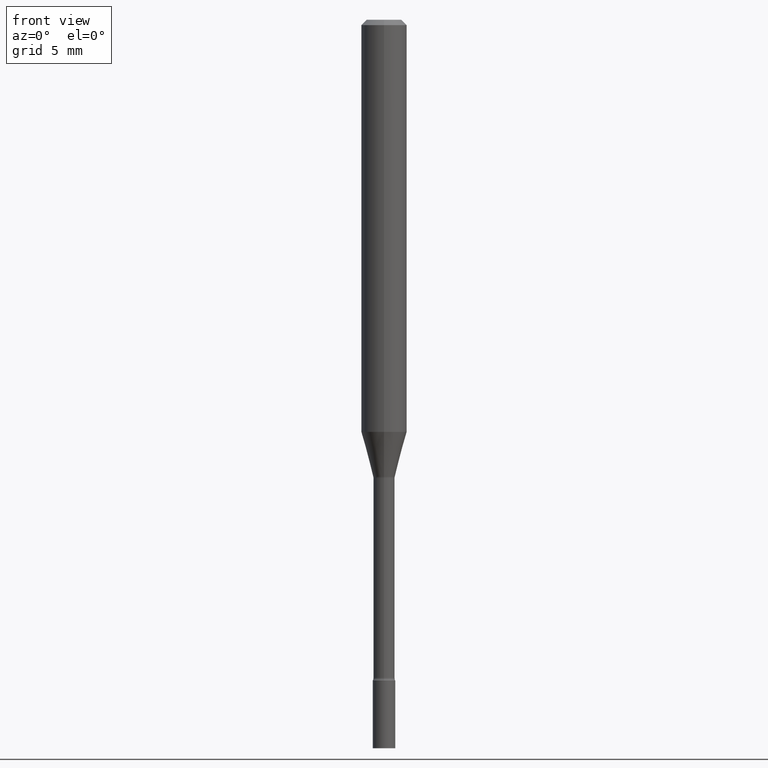
[diagram: clean part render]
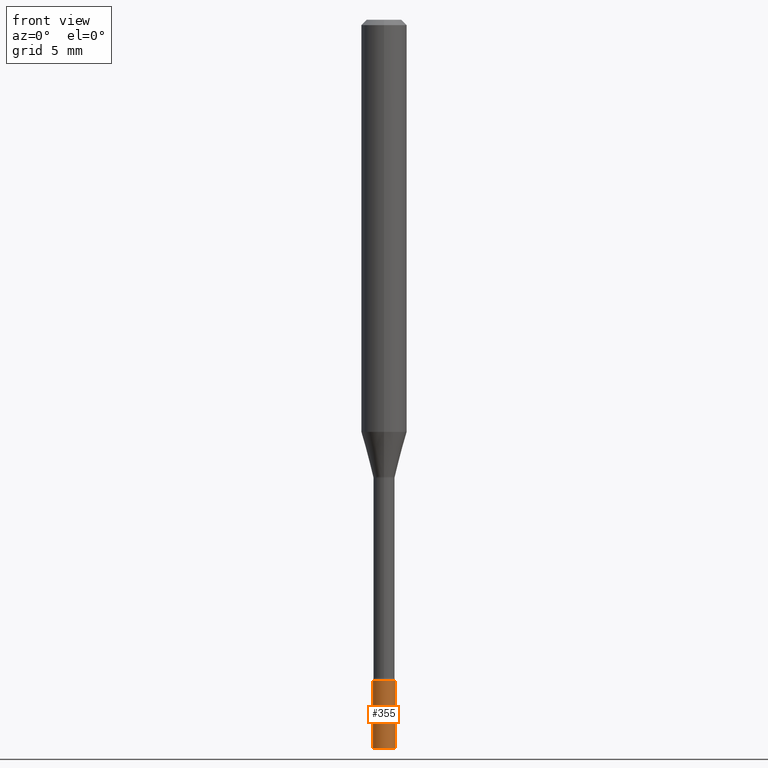
[diagram: same view with one face highlighted and labeled with its STEP entity id]
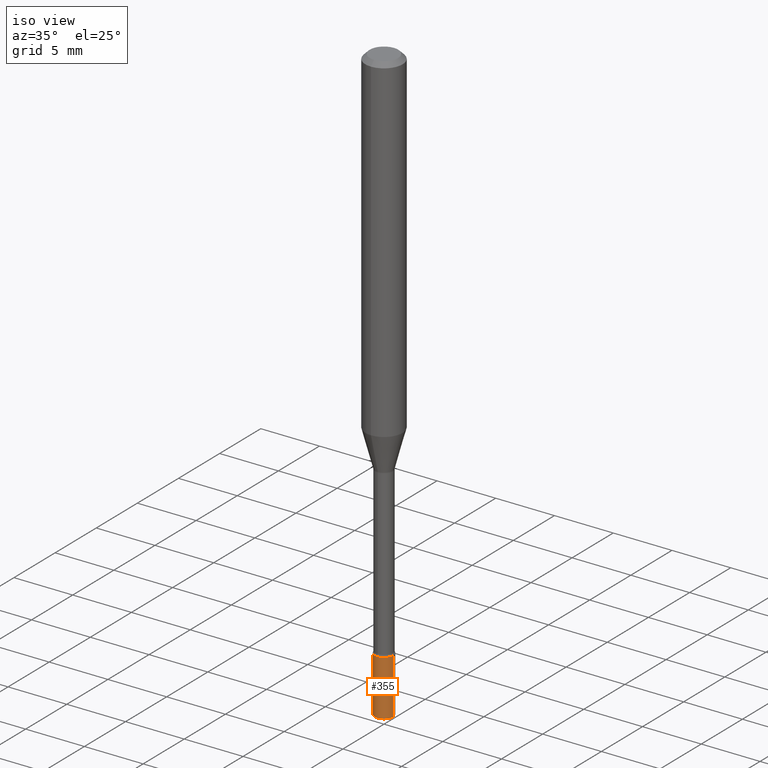
[diagram: same view with one face highlighted and labeled with its STEP entity id]
A machine part, front view. The second image highlights one B-rep face of the part: STEP entity #355.
A second angle (iso view) of the same face is appended — the face is thin or edge-on in the first view.
In plain terms, the highlighted cylindrical surface (edge-blend (fillet) strip) has radius 0.7874 mm, axis along (-0, 0, 1).
Its self-contained STEP definition (entity closure, byte-faithful):
#16 = EDGE_CURVE ( 'NONE', #511, #450, #281, .T. ) ;
#19 = CARTESIAN_POINT ( 'NONE',  ( 4.436080414419837365E-29, -6.333547148661465016E-15, -1.813999999999999835 ) ) ;
#26 = CARTESIAN_POINT ( 'NONE',  ( -0.03099999999999999978, -6.437986665088246838E-15, -2.000000000000000000 ) ) ;
#32 = VERTEX_POINT ( 'NONE', #60 ) ;
#38 = CARTESIAN_POINT ( 'NONE',  ( 0.000000000000000000, 0.000000000000000000, 0.000000000000000000 ) ) ;
#49 = DIRECTION ( 'NONE',  ( -2.445468806185136877E-29, 3.491481338843145188E-15, 1.000000000000000000 ) ) ;
#60 = CARTESIAN_POINT ( 'NONE',  ( -0.03099999999999999978, -6.437986665088246838E-15, -1.813999999999999835 ) ) ;
#66 = AXIS2_PLACEMENT_3D ( 'NONE', #202, #442, #446 ) ;
#78 = ORIENTED_EDGE ( 'NONE', *, *, #454, .T. ) ;
#128 = LINE ( 'NONE', #207, #360 ) ;
#129 = ORIENTED_EDGE ( 'NONE', *, *, #16, .T. ) ;
#166 = CARTESIAN_POINT ( 'NONE',  ( 0.03099999999999999978, -7.199434520694564708E-15, -2.000000000000000000 ) ) ;
#195 = CIRCLE ( 'NONE', #445, 0.03099999999999999978 ) ;
#201 = VERTEX_POINT ( 'NONE', #26 ) ;
#202 = CARTESIAN_POINT ( 'NONE',  ( 4.890937612370273194E-29, -6.982962677686291165E-15, -2.000000000000000000 ) ) ;
#207 = CARTESIAN_POINT ( 'NONE',  ( -0.03099999999999999978, 2.202682480856310560E-16, -1.524869877979020612E-30 ) ) ;
#213 = CARTESIAN_POINT ( 'NONE',  ( 0.03099999999999999978, -2.164718430082742572E-16, 1.511614800496739984E-30 ) ) ;
#245 = EDGE_CURVE ( 'NONE', #32, #450, #195, .T. ) ;
#276 = AXIS2_PLACEMENT_3D ( 'NONE', #38, #278, #434 ) ;
#278 = DIRECTION ( 'NONE',  ( -2.445468806185136597E-29, 3.491481338843145583E-15, 1.000000000000000000 ) ) ;
#280 = CARTESIAN_POINT ( 'NONE',  ( 0.03099999999999999978, -6.550018991669739348E-15, -1.813999999999999835 ) ) ;
#281 = LINE ( 'NONE', #213, #292 ) ;
#292 = VECTOR ( 'NONE', #49, 39.37007874015748143 ) ;
#347 = ORIENTED_EDGE ( 'NONE', *, *, #379, .F. ) ;
#355 = ADVANCED_FACE ( 'NONE', ( #520 ), #515, .T. ) ;
#360 = VECTOR ( 'NONE', #485, 39.37007874015748143 ) ;
#379 = EDGE_CURVE ( 'NONE', #201, #32, #128, .T. ) ;
#388 = DIRECTION ( 'NONE',  ( 1.000000000000000000, -6.982962677686270655E-15, 0.000000000000000000 ) ) ;
#423 = EDGE_LOOP ( 'NONE', ( #347, #78, #129, #452 ) ) ;
#434 = DIRECTION ( 'NONE',  ( 1.000000000000000000, -6.982962677686266711E-15, 4.876176775795935232E-29 ) ) ;
#438 = CIRCLE ( 'NONE', #66, 0.03099999999999999978 ) ;
#442 = DIRECTION ( 'NONE',  ( -2.445468806185136597E-29, 3.491481338843145583E-15, 1.000000000000000000 ) ) ;
#445 = AXIS2_PLACEMENT_3D ( 'NONE', #19, #458, #388 ) ;
#446 = DIRECTION ( 'NONE',  ( 1.000000000000000000, -6.982962677686270655E-15, 0.000000000000000000 ) ) ;
#450 = VERTEX_POINT ( 'NONE', #280 ) ;
#452 = ORIENTED_EDGE ( 'NONE', *, *, #245, .F. ) ;
#454 = EDGE_CURVE ( 'NONE', #201, #511, #438, .T. ) ;
#458 = DIRECTION ( 'NONE',  ( -2.445468806185136597E-29, 3.491481338843145583E-15, 1.000000000000000000 ) ) ;
#485 = DIRECTION ( 'NONE',  ( -2.445468806185136877E-29, 3.491481338843145188E-15, 1.000000000000000000 ) ) ;
#511 = VERTEX_POINT ( 'NONE', #166 ) ;
#515 = CYLINDRICAL_SURFACE ( 'NONE', #276, 0.03099999999999999978 ) ;
#520 = FACE_OUTER_BOUND ( 'NONE', #423, .T. ) ;